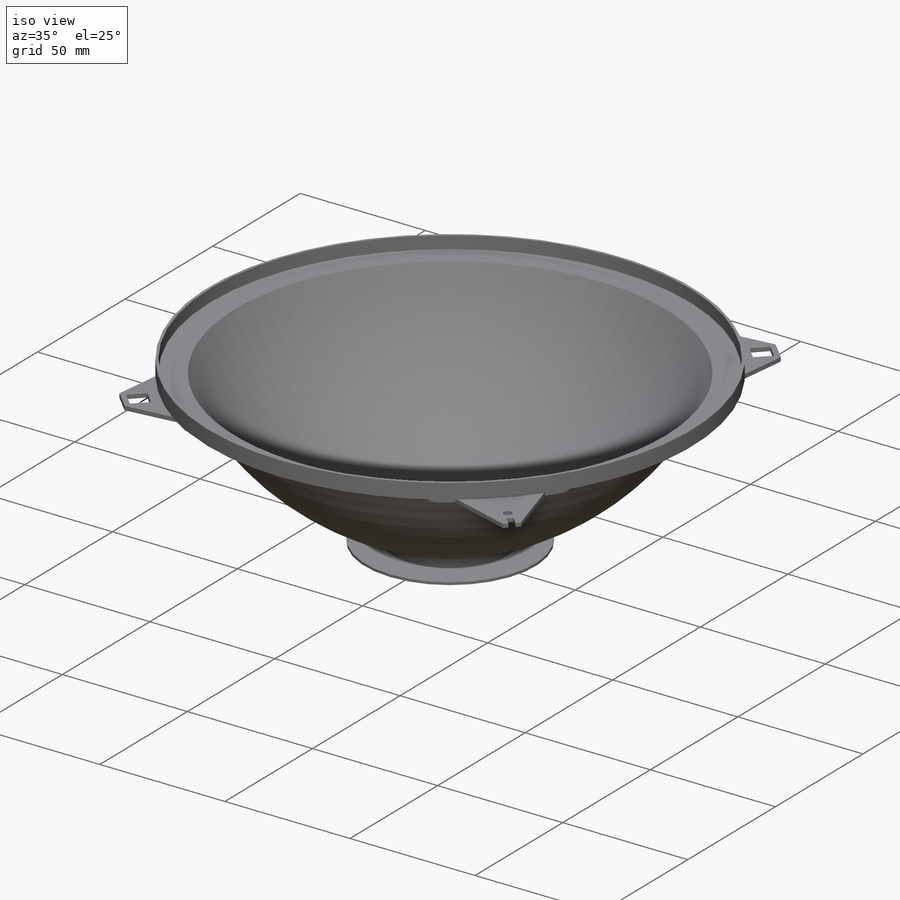
[diagram: iso view]
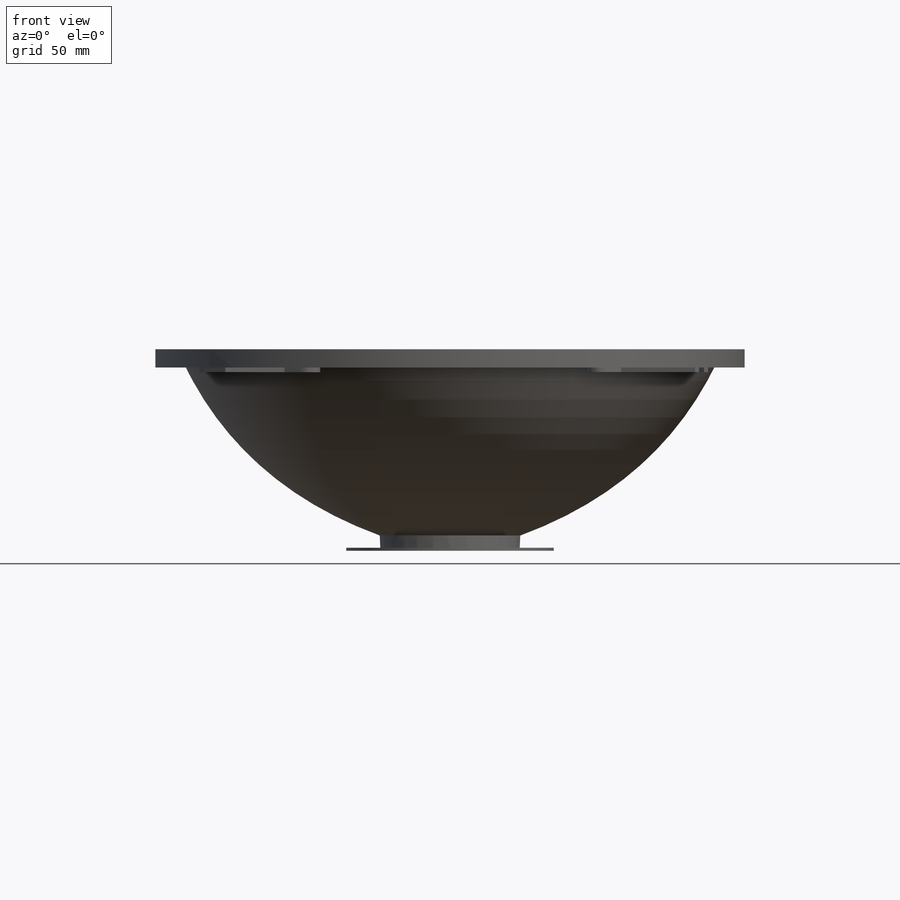
[diagram: front view]
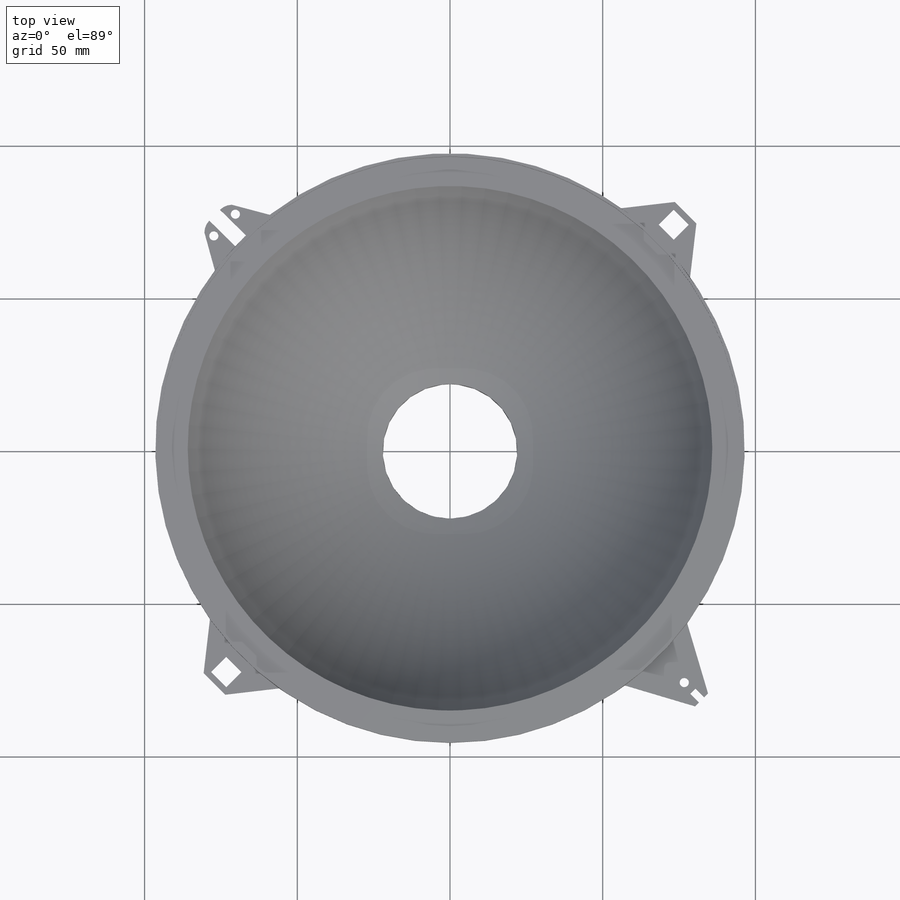
[diagram: top view]
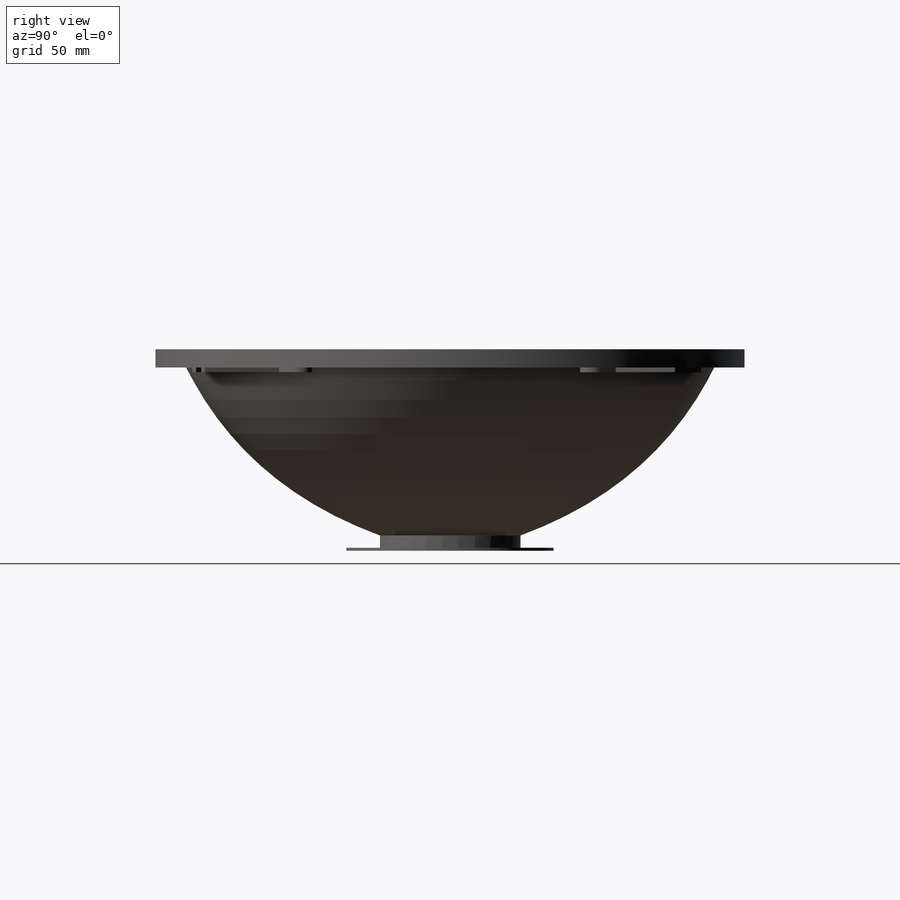
[diagram: right view]
SOLIDWORKS PART (.sldprt)
format: sldprt  version: not decoded by parser v0  size: 409,600 bytes
history: native  units: mm
features: sketch x5, plane x4, extrude x2, material x1, revolve x1, shell x1, cut_extrude x1 (+13 scaffold rows collapsed)
feature tree (28):
  scaffold x13  (default folders/planes/origin — collapsed)
  material  "Materiał <nieokreślony>"
  plane  "Płaszczyzna przednia"
  plane  "Płaszczyzna górna"
  plane  "Płaszczyzna prawa"
  sketch  "Szkic1"  dims[c1.D1=45.0mm c2.D1=23.0mm c2.D2=4.0mm c2.D3=11.0mm c2.D4=1.0mm c2.D5=4.0mm c3.D2=5.0mm c3.D5=90.5mm c3.D6=60.0mm c4.D5=90.5mm c4.D6=10.0mm c4.D7=6.0mm c4.D8=96.5mm c5.D5=86.5mm]
  revolve  "Obrót2"  Angle=360deg
  shell  "Skorupa5"  Thickness=1mm
  sketch  "Szkic6"  dims[D1=44.0mm]
  cut_extrude  "Wytnij-wyciągnięcie1"  Depth=10mm
  sketch  "Szkic7"  dims[c1.D4=~87.079378mm c1.D1=~282.587177mm c2.D1=45.0deg c2.D2=~264.456034mm c3.D2=45.0deg c3.D3=45.0mm c3.D4=~22.005743mm c4.D4=90.0deg c5.D4=22.0mm c5.D5=2.0mm c5.D6=7.0mm c5.D7=7.0mm c5.D8=10.0mm]
  extrude  "2xmocowanie_pelne"  Depth=1.6mm
  sketch  "Szkic9"  dims[c1.D1=4.0mm c1.D2=~88.224014mm c1.D6=87.5mm c1.D13=3.0mm c1.D14=3.0mm c1.D17=3.0mm c1.D22=~6.027839mm c1.D19=3.0mm c2.D1=2.0mm c2.D2=8.0mm c2.D3=40.0mm c2.D4=20.0mm c2.D5=~110.293324mm c3.D5=45.0deg c3.D7=~159.628105mm c4.D7=90.0deg c4.D8=~13.209721mm c5.D8=90.0deg c6.D8=3.0mm c6.D7=~159.628105mm c7.D7=90.0deg c8.D7=15.0mm c8.D9=4.0mm c8.D10=2.4mm c8.D11=1.2mm c8.D12=3.0mm c8.D13=15.0mm c8.D14=8.0mm c8.D15=5.0mm c8.D16=5.1mm c8.D18=3.0mm c8.D19=~2.563333mm c8.D20=12.7mm c8.D21=13.0mm c9.D16=9.0mm c9.D19=15.0mm c9.D21=~9.458425mm c10.D21=~10.547674deg c11.D21=5.0mm c11.D22=4.0mm c11.D23=40.0mm c11.D24=20.0mm c11.D25=20.0mm c11.D26=20.0mm c11.D15=5.0mm c11.D16=13.0mm c11.D17=11.0mm c11.D18=~14.213623mm c11.D20=2.5mm]
  extrude  "Dodanie-wyciągnięcie1"  Depth=1.5mm
  plane  "Płaszczyzna1"
  sketch  "Szkic 3D1"
decode coverage: 9 of 10 modeling features carry decoded parameters
note: ~ marks probable driven/reference dimensions
note: suppression state not decoded; provenance and decode notes live in map.json
